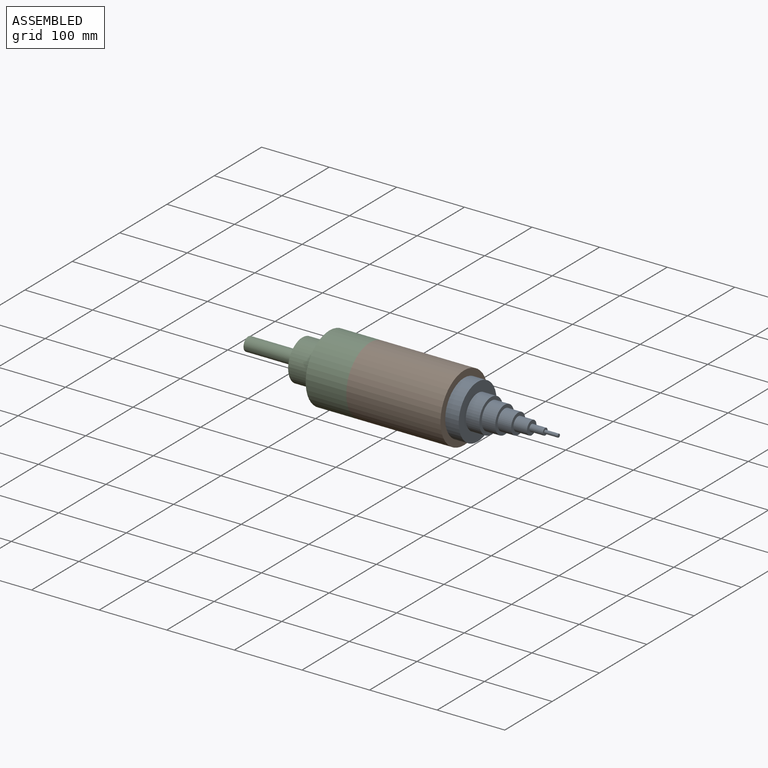
[diagram: assembled view]
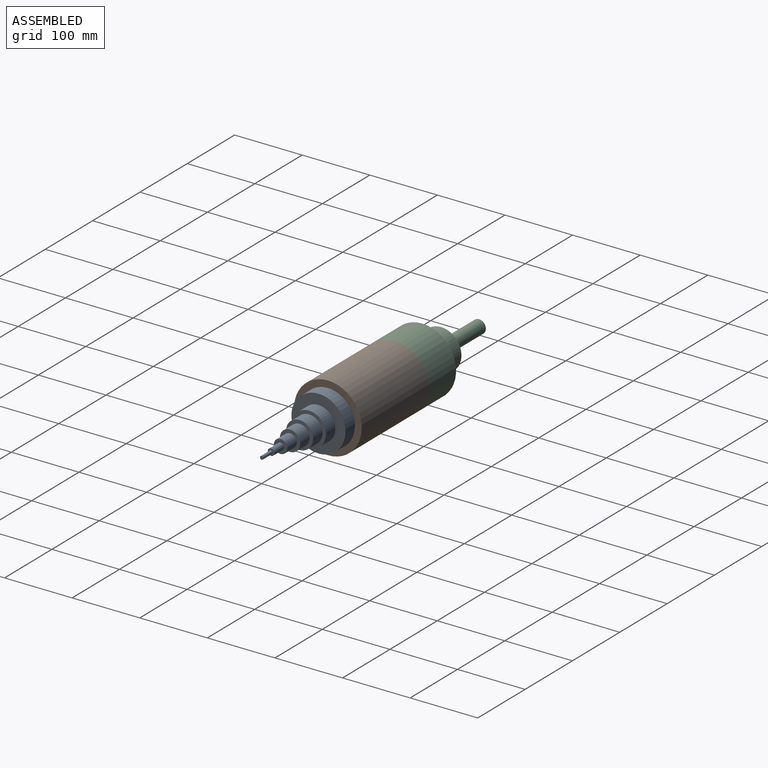
[diagram: assembled view, second angle]
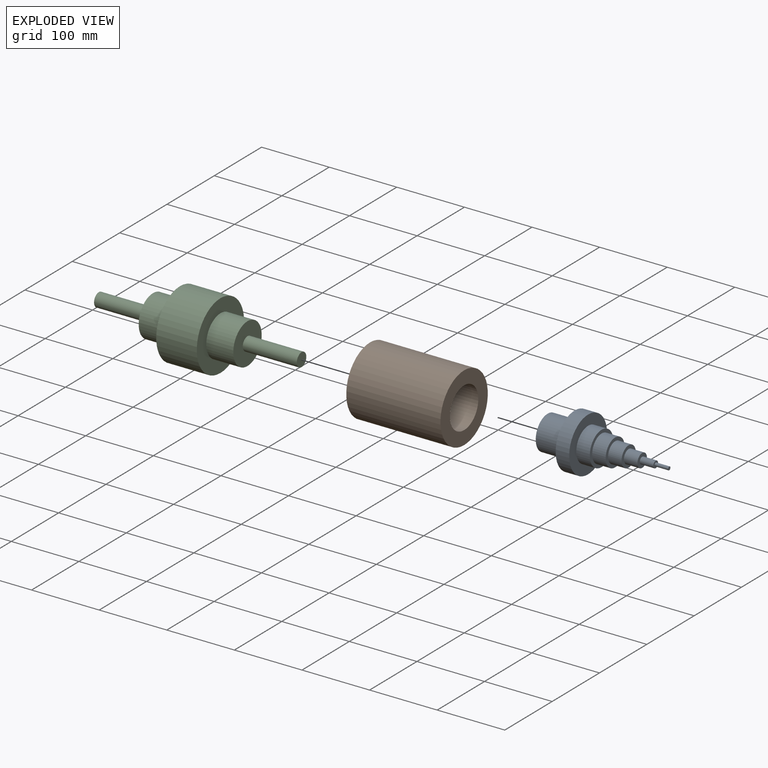
[diagram: exploded view]
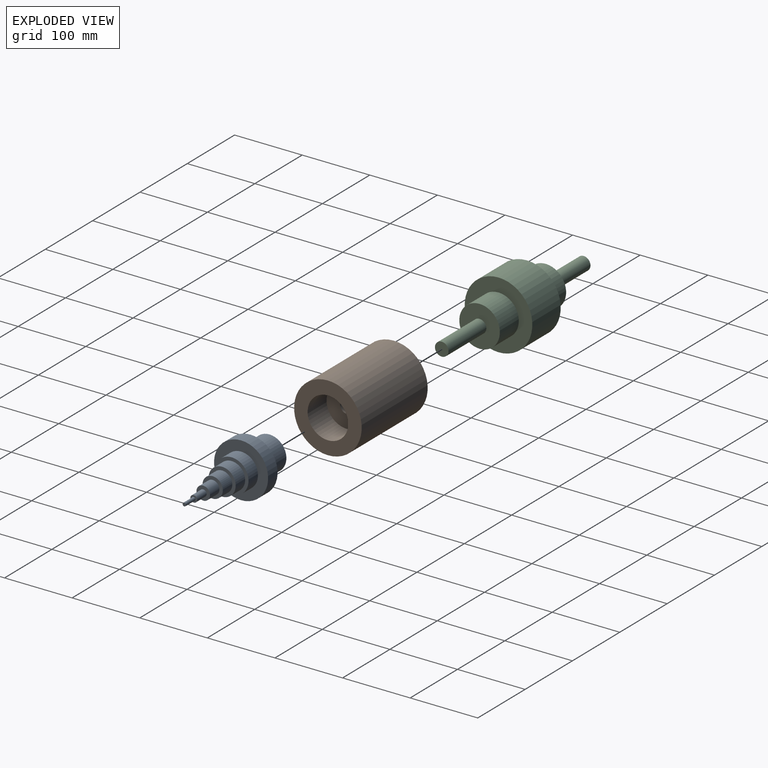
[diagram: exploded view, second angle]
ASSEMBLY  parts=3 mates=2
PART A: 19 faces, bbox 180x80x80 mm
  f0: plane 50x50mm, normal (-1,0,0), area 706.9mm2, adj f1,f18
  f1: cylinder r=25mm len=50mm, axis (-1,0,0), area 6283.2mm2, adj f0,f2
  f2: plane 80x80mm, normal (-1,0,0), area 3063.1mm2, adj f1,f3
  f3: cylinder r=40mm len=80mm, axis (-1,0,0), area 5026.5mm2, adj f2,f4
  f4: plane 80x80mm, normal (1,0,0), area 3063.1mm2, adj f3,f5
  f5: cylinder r=25mm len=50mm, axis (-1,0,0), area 3141.6mm2, adj f4,f6
  f6: plane 50x50mm, normal (1,0,0), area 706.9mm2, adj f5,f7
  f7: cylinder r=20mm len=40mm, axis (-1,0,0), area 2513.3mm2, adj f6,f8
  f8: plane 40x40mm, normal (1,0,0), area 549.8mm2, adj f7,f9
  f9: cylinder r=15mm len=30mm, axis (-1,0,0), area 1885mm2, adj f8,f10
  f10: plane 30x30mm, normal (1,0,0), area 392.7mm2, adj f9,f11
  f11: cylinder r=10mm len=20mm, axis (-1,0,0), area 1256.6mm2, adj f10,f12
  f12: plane 20x20mm, normal (1,0,0), area 235.6mm2, adj f11,f13
  f13: cylinder r=5mm len=20mm, axis (-1,0,0), area 628.3mm2, adj f12,f14
  f14: plane 10x10mm, normal (1,0,0), area 58.9mm2, adj f13,f15
  f15: cylinder r=2.5mm len=20mm, axis (-1,0,0), area 314.2mm2, adj f14,f16
  f16: plane 5x5mm, normal (1,0,0), area 19.6mm2, adj f15
  f17: plane 40x40mm, normal (-1,0,0), area 1256.6mm2, adj f18
  f18: cylinder r=20mm len=40mm, axis (-1,0,0), area 5026.5mm2, adj f0,f17
PART B: 7 faces, bbox 139.4x100x100 mm
  f0: plane 100x100mm, normal (-1,0,0), area 7854mm2, adj f1
  f1: cylinder r=50mm len=139.35mm, axis (-1,0,0), area 43778.1mm2, adj f0,f2
  f2: plane 100x100mm, normal (1,0,0), area 5026.5mm2, adj f1,f3
  f3: cylinder r=30mm len=60mm, axis (-1,0,0), area 7539.8mm2, adj f2,f4
  f4: plane 60x60mm, normal (1,0,0), area 2513.3mm2, adj f3,f5
  f5: cylinder r=10mm len=80mm, axis (-1,0,0), area 5026.5mm2, adj f4,f6
  f6: plane 20x20mm, normal (1,0,0), area 314.2mm2, adj f5
PART C: 11 faces, bbox 300x100x100 mm
  f0: plane 20x20mm, normal (-1,0,0), area 314.2mm2, adj f1
  f1: cylinder r=10mm len=80mm, axis (1,0,0), area 5026.5mm2, adj f0,f2
  f2: plane 60x60mm, normal (-1,0,0), area 2513.3mm2, adj f1,f3
  f3: cylinder r=30mm len=60mm, axis (1,0,0), area 7539.8mm2, adj f2,f4
  f4: plane 100x100mm, normal (-1,0,0), area 5026.5mm2, adj f3,f5
  f5: cylinder r=50mm len=100mm, axis (1,0,0), area 18849.6mm2, adj f4,f6
  f6: plane 100x100mm, normal (1,0,0), area 5026.5mm2, adj f5,f7
  f7: cylinder r=30mm len=60mm, axis (1,0,0), area 7539.8mm2, adj f6,f8
  f8: plane 60x60mm, normal (1,0,0), area 2513.3mm2, adj f7,f9
  f9: cylinder r=10mm len=80mm, axis (1,0,0), area 5026.5mm2, adj f8,f10
  f10: plane 20x20mm, normal (1,0,0), area 314.2mm2, adj f9
PLACE A t=(-40.03,28.23,-18.53)mm
PLACE B t=(-91.11,28.23,-18.53)mm
PLACE C t=(-169.19,28.23,-18.53)mm
MATE planar B.f1 <-> C.f1  axis (-1,0,0) through (-139.38,28.23,-18.53)mm
MATE planar A.f1 <-> B.f1  axis (-1,0,0) through (-0.03,28.23,-18.53)mm
